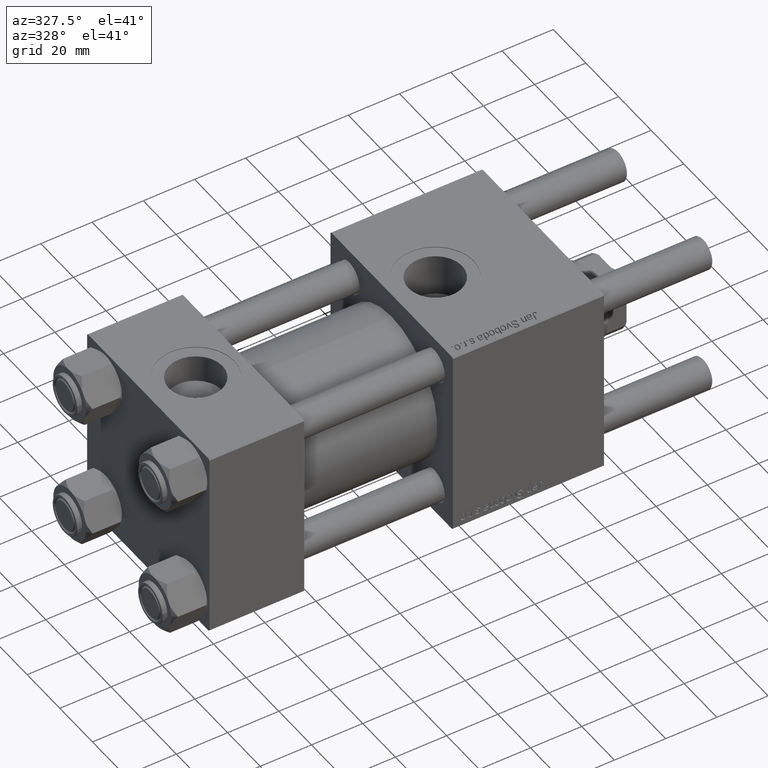
[diagram: clean part render]
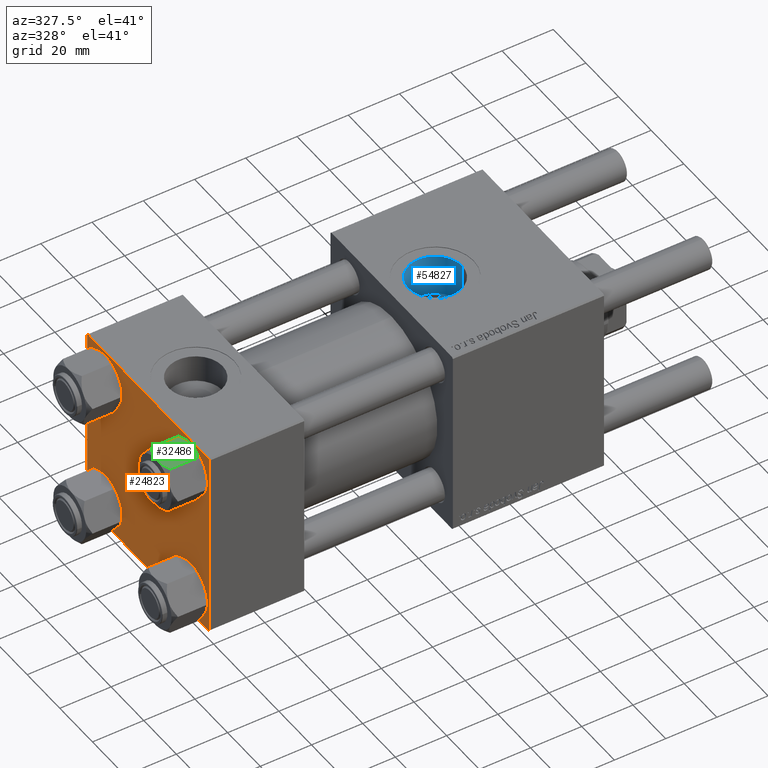
[diagram: same view with three faces highlighted in distinct colors, each labeled with its STEP entity id]
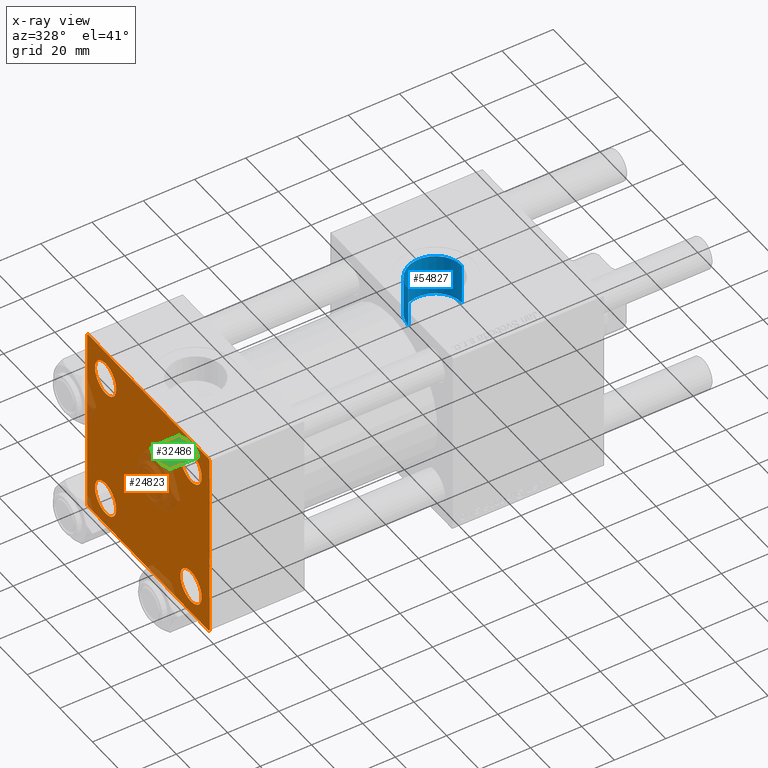
[diagram: x-ray of the same camera — body ghosted, the three highlighted faces saturated]
A machine part, auxiliary view with three faces highlighted in distinct colors.
The next image is the same camera in x-ray (body ghosted, the three faces saturated) — at least one of them is partly hidden behind the body in this view.
Their STEP definitions:

[orange] entity #24823 — the highlighted planar face has unit normal (-1, 0, 0).
#125 = ORIENTED_EDGE ( 'NONE', *, *, #30064, .T. ) ;
#290 = CARTESIAN_POINT ( 'NONE',  ( 0.000000000000000000, 37.49999999999999289, 37.50000000000000000 ) ) ;
#313 = ORIENTED_EDGE ( 'NONE', *, *, #36867, .T. ) ;
#1487 = ORIENTED_EDGE ( 'NONE', *, *, #11150, .T. ) ;
#1965 = CIRCLE ( 'NONE', #16617, 6.500000000000015987 ) ;
#2159 = LINE ( 'NONE', #19913, #5676 ) ;
#2279 = VERTEX_POINT ( 'NONE', #30538 ) ;
#3188 = CARTESIAN_POINT ( 'NONE',  ( 0.000000000000000000, -37.00000000000002132, -37.50000000000000711 ) ) ;
#3226 = CARTESIAN_POINT ( 'NONE',  ( 0.000000000000000000, -26.14999999999999147, 32.65000000000003411 ) ) ;
#3412 = VERTEX_POINT ( 'NONE', #42051 ) ;
#3958 = VECTOR ( 'NONE', #35817, 1000.000000000000000 ) ;
#4011 = VERTEX_POINT ( 'NONE', #9933 ) ;
#4043 = DIRECTION ( 'NONE',  ( -1.000000000000000000, 0.000000000000000000, -0.000000000000000000 ) ) ;
#5489 = CARTESIAN_POINT ( 'NONE',  ( 0.000000000000000000, 26.14999999999999858, 32.65000000000002700 ) ) ;
#5568 = EDGE_CURVE ( 'NONE', #41372, #29368, #49955, .T. ) ;
#5676 = VECTOR ( 'NONE', #19636, 1000.000000000000114 ) ;
#7045 = CARTESIAN_POINT ( 'NONE',  ( 0.000000000000000000, 37.24999999999998579, -37.24999999999998579 ) ) ;
#7262 = CARTESIAN_POINT ( 'NONE',  ( 0.000000000000000000, 26.14999999999999858, -26.15000000000000213 ) ) ;
#8336 = CARTESIAN_POINT ( 'NONE',  ( 0.000000000000000000, 37.49999999999999289, -37.50000000000000000 ) ) ;
#8511 = DIRECTION ( 'NONE',  ( 0.000000000000000000, 0.000000000000000000, 1.000000000000000000 ) ) ;
#9461 = VERTEX_POINT ( 'NONE', #52513 ) ;
#9532 = DIRECTION ( 'NONE',  ( 1.000000000000000000, -0.000000000000000000, 0.000000000000000000 ) ) ;
#9640 = LINE ( 'NONE', #26841, #22949 ) ;
#9933 = CARTESIAN_POINT ( 'NONE',  ( 0.000000000000000000, -37.50000000000000000, -37.00000000000003553 ) ) ;
#10087 = CARTESIAN_POINT ( 'NONE',  ( 0.000000000000000000, -37.00000000000000711, 37.49999999999999289 ) ) ;
#10203 = EDGE_CURVE ( 'NONE', #42466, #17204, #33607, .T. ) ;
#10402 = DIRECTION ( 'NONE',  ( 0.000000000000000000, 0.000000000000000000, 1.000000000000000000 ) ) ;
#11150 = EDGE_CURVE ( 'NONE', #29368, #41372, #24474, .T. ) ;
#11306 = DIRECTION ( 'NONE',  ( 0.000000000000000000, -0.7071067811865524577, 0.7071067811865426878 ) ) ;
#12167 = DIRECTION ( 'NONE',  ( 0.000000000000000000, 9.251858538542971581E-17, -1.000000000000000000 ) ) ;
#12359 = DIRECTION ( 'NONE',  ( -0.000000000000000000, 0.000000000000000000, 1.000000000000000000 ) ) ;
#12442 = CARTESIAN_POINT ( 'NONE',  ( 0.000000000000000000, 26.14999999999999858, -26.15000000000000213 ) ) ;
#12893 = LINE ( 'NONE', #290, #3958 ) ;
#13949 = CARTESIAN_POINT ( 'NONE',  ( 0.000000000000000000, -26.14999999999999147, 26.15000000000000924 ) ) ;
#16060 = DIRECTION ( 'NONE',  ( 1.000000000000000000, -0.000000000000000000, 0.000000000000000000 ) ) ;
#16617 = AXIS2_PLACEMENT_3D ( 'NONE', #47770, #21091, #56088 ) ;
#16689 = CARTESIAN_POINT ( 'NONE',  ( 0.000000000000000000, 26.14999999999999858, 19.64999999999998437 ) ) ;
#16946 = FACE_BOUND ( 'NONE', #48806, .T. ) ;
#17039 = EDGE_CURVE ( 'NONE', #29620, #32361, #29995, .T. ) ;
#17117 = DIRECTION ( 'NONE',  ( 1.000000000000000000, -0.000000000000000000, 0.000000000000000000 ) ) ;
#17204 = VERTEX_POINT ( 'NONE', #16689 ) ;
#17318 = CARTESIAN_POINT ( 'NONE',  ( 0.000000000000000000, -37.50000000000000711, 37.49999999999999289 ) ) ;
#17510 = PLANE ( 'NONE',  #41210 ) ;
#17923 = ORIENTED_EDGE ( 'NONE', *, *, #22160, .F. ) ;
#18543 = CIRCLE ( 'NONE', #24953, 6.500000000000023093 ) ;
#19333 = DIRECTION ( 'NONE',  ( 1.000000000000000000, -0.000000000000000000, 0.000000000000000000 ) ) ;
#19582 = ORIENTED_EDGE ( 'NONE', *, *, #39411, .T. ) ;
#19636 = DIRECTION ( 'NONE',  ( -0.000000000000000000, 0.7071067811865474617, 0.7071067811865474617 ) ) ;
#19669 = ORIENTED_EDGE ( 'NONE', *, *, #31120, .T. ) ;
#19913 = CARTESIAN_POINT ( 'NONE',  ( -0.000000000000000000, -37.25000000000000000, 37.25000000000000000 ) ) ;
#20348 = DIRECTION ( 'NONE',  ( 0.000000000000000000, 0.000000000000000000, 1.000000000000000000 ) ) ;
#20590 = EDGE_CURVE ( 'NONE', #47386, #50327, #34701, .T. ) ;
#20843 = CARTESIAN_POINT ( 'NONE',  ( 0.000000000000000000, -26.14999999999999147, -19.64999999999999503 ) ) ;
#21091 = DIRECTION ( 'NONE',  ( 1.000000000000000000, -0.000000000000000000, 0.000000000000000000 ) ) ;
#22160 = EDGE_CURVE ( 'NONE', #47751, #4011, #56600, .T. ) ;
#22949 = VECTOR ( 'NONE', #27975, 1000.000000000000000 ) ;
#23340 = EDGE_CURVE ( 'NONE', #3412, #47386, #51201, .T. ) ;
#24474 = CIRCLE ( 'NONE', #34540, 6.500000000000023093 ) ;
#24823 = ADVANCED_FACE ( 'NONE', ( #54819, #16946, #39011, #47346, #56511 ), #17510, .T. ) ;
#24866 = VECTOR ( 'NONE', #11306, 1000.000000000000000 ) ;
#24953 = AXIS2_PLACEMENT_3D ( 'NONE', #44805, #9532, #40785 ) ;
#25340 = ORIENTED_EDGE ( 'NONE', *, *, #34327, .T. ) ;
#25487 = VERTEX_POINT ( 'NONE', #27917 ) ;
#25764 = ORIENTED_EDGE ( 'NONE', *, *, #47537, .T. ) ;
#26841 = CARTESIAN_POINT ( 'NONE',  ( 0.000000000000000000, 37.49999999999999289, 37.50000000000000000 ) ) ;
#27225 = AXIS2_PLACEMENT_3D ( 'NONE', #45682, #41656, #10402 ) ;
#27917 = CARTESIAN_POINT ( 'NONE',  ( 0.000000000000000000, -26.14999999999999147, -32.65000000000002700 ) ) ;
#27975 = DIRECTION ( 'NONE',  ( 0.000000000000000000, 0.000000000000000000, -1.000000000000000000 ) ) ;
#28035 = VERTEX_POINT ( 'NONE', #20843 ) ;
#28155 = AXIS2_PLACEMENT_3D ( 'NONE', #12442, #29929, #30207 ) ;
#28746 = DIRECTION ( 'NONE',  ( 0.000000000000000000, 0.000000000000000000, 1.000000000000000000 ) ) ;
#29331 = CIRCLE ( 'NONE', #50415, 6.500000000000015987 ) ;
#29368 = VERTEX_POINT ( 'NONE', #38497 ) ;
#29620 = VERTEX_POINT ( 'NONE', #33133 ) ;
#29807 = CARTESIAN_POINT ( 'NONE',  ( 0.000000000000000000, -26.14999999999999147, -26.15000000000000924 ) ) ;
#29929 = DIRECTION ( 'NONE',  ( 1.000000000000000000, -0.000000000000000000, 0.000000000000000000 ) ) ;
#29995 = CIRCLE ( 'NONE', #28155, 6.500000000000015987 ) ;
#30064 = EDGE_CURVE ( 'NONE', #32361, #29620, #45932, .T. ) ;
#30118 = VECTOR ( 'NONE', #30402, 1000.000000000000000 ) ;
#30151 = VECTOR ( 'NONE', #12167, 1000.000000000000000 ) ;
#30207 = DIRECTION ( 'NONE',  ( 0.000000000000000000, 0.000000000000000000, 1.000000000000000000 ) ) ;
#30402 = DIRECTION ( 'NONE',  ( 0.000000000000000000, -1.000000000000000000, -9.251858538542972814E-17 ) ) ;
#30538 = CARTESIAN_POINT ( 'NONE',  ( 0.000000000000000000, 36.99999999999999289, 37.50000000000000000 ) ) ;
#31120 = EDGE_CURVE ( 'NONE', #9461, #3412, #9640, .T. ) ;
#31252 = ORIENTED_EDGE ( 'NONE', *, *, #20590, .T. ) ;
#31407 = CARTESIAN_POINT ( 'NONE',  ( 0.000000000000000000, 36.99999999999997868, -37.50000000000000000 ) ) ;
#32134 = EDGE_LOOP ( 'NONE', ( #34974, #1487 ) ) ;
#32361 = VERTEX_POINT ( 'NONE', #32432 ) ;
#32432 = CARTESIAN_POINT ( 'NONE',  ( 0.000000000000000000, 26.14999999999999858, -19.64999999999998792 ) ) ;
#33133 = CARTESIAN_POINT ( 'NONE',  ( 0.000000000000000000, 26.14999999999999858, -32.65000000000001990 ) ) ;
#33461 = VERTEX_POINT ( 'NONE', #10087 ) ;
#33604 = CARTESIAN_POINT ( 'NONE',  ( 0.000000000000000000, -37.50000000000000711, 36.99999999999999289 ) ) ;
#33607 = CIRCLE ( 'NONE', #27225, 6.500000000000023093 ) ;
#33895 = EDGE_CURVE ( 'NONE', #2279, #9461, #46141, .T. ) ;
#34327 = EDGE_CURVE ( 'NONE', #28035, #25487, #1965, .T. ) ;
#34454 = EDGE_CURVE ( 'NONE', #50327, #4011, #37684, .T. ) ;
#34508 = ORIENTED_EDGE ( 'NONE', *, *, #33895, .T. ) ;
#34540 = AXIS2_PLACEMENT_3D ( 'NONE', #41941, #50269, #28746 ) ;
#34701 = LINE ( 'NONE', #8336, #30118 ) ;
#34974 = ORIENTED_EDGE ( 'NONE', *, *, #5568, .T. ) ;
#35399 = ORIENTED_EDGE ( 'NONE', *, *, #23340, .T. ) ;
#35684 = VECTOR ( 'NONE', #46056, 1000.000000000000114 ) ;
#35817 = DIRECTION ( 'NONE',  ( 0.000000000000000000, -1.000000000000000000, -9.251858538542971581E-17 ) ) ;
#35852 = VECTOR ( 'NONE', #55866, 1000.000000000000114 ) ;
#36852 = ORIENTED_EDGE ( 'NONE', *, *, #10203, .T. ) ;
#36867 = EDGE_CURVE ( 'NONE', #17204, #42466, #18543, .T. ) ;
#37684 = LINE ( 'NONE', #50027, #24866 ) ;
#38497 = CARTESIAN_POINT ( 'NONE',  ( 0.000000000000000000, -26.14999999999999147, 19.64999999999999147 ) ) ;
#39011 = FACE_BOUND ( 'NONE', #55696, .T. ) ;
#39295 = CARTESIAN_POINT ( 'NONE',  ( 0.000000000000000000, 0.000000000000000000, 0.000000000000000000 ) ) ;
#39411 = EDGE_CURVE ( 'NONE', #25487, #28035, #29331, .T. ) ;
#40785 = DIRECTION ( 'NONE',  ( 0.000000000000000000, 0.000000000000000000, 1.000000000000000000 ) ) ;
#41210 = AXIS2_PLACEMENT_3D ( 'NONE', #39295, #4043, #12359 ) ;
#41372 = VERTEX_POINT ( 'NONE', #3226 ) ;
#41512 = ORIENTED_EDGE ( 'NONE', *, *, #17039, .T. ) ;
#41656 = DIRECTION ( 'NONE',  ( 1.000000000000000000, -0.000000000000000000, 0.000000000000000000 ) ) ;
#41941 = CARTESIAN_POINT ( 'NONE',  ( 0.000000000000000000, -26.14999999999999147, 26.15000000000000924 ) ) ;
#42051 = CARTESIAN_POINT ( 'NONE',  ( 0.000000000000000000, 37.49999999999999289, -36.99999999999998579 ) ) ;
#42466 = VERTEX_POINT ( 'NONE', #5489 ) ;
#44805 = CARTESIAN_POINT ( 'NONE',  ( 0.000000000000000000, 26.14999999999999858, 26.15000000000000213 ) ) ;
#45682 = CARTESIAN_POINT ( 'NONE',  ( 0.000000000000000000, 26.14999999999999858, 26.15000000000000213 ) ) ;
#45932 = CIRCLE ( 'NONE', #54205, 6.500000000000015987 ) ;
#46056 = DIRECTION ( 'NONE',  ( -0.000000000000000000, -0.7071067811865474617, -0.7071067811865474617 ) ) ;
#46141 = LINE ( 'NONE', #50438, #35852 ) ;
#46426 = EDGE_LOOP ( 'NONE', ( #36852, #313 ) ) ;
#47346 = FACE_BOUND ( 'NONE', #46426, .T. ) ;
#47386 = VERTEX_POINT ( 'NONE', #31407 ) ;
#47537 = EDGE_CURVE ( 'NONE', #47751, #33461, #2159, .T. ) ;
#47751 = VERTEX_POINT ( 'NONE', #33604 ) ;
#47770 = CARTESIAN_POINT ( 'NONE',  ( 0.000000000000000000, -26.14999999999999147, -26.15000000000000924 ) ) ;
#48575 = ORIENTED_EDGE ( 'NONE', *, *, #34454, .T. ) ;
#48806 = EDGE_LOOP ( 'NONE', ( #25340, #19582 ) ) ;
#49955 = CIRCLE ( 'NONE', #55439, 6.500000000000023093 ) ;
#50027 = CARTESIAN_POINT ( 'NONE',  ( 0.000000000000000000, -37.24999999999975842, -37.25000000000027001 ) ) ;
#50269 = DIRECTION ( 'NONE',  ( 1.000000000000000000, -0.000000000000000000, 0.000000000000000000 ) ) ;
#50327 = VERTEX_POINT ( 'NONE', #3188 ) ;
#50415 = AXIS2_PLACEMENT_3D ( 'NONE', #29807, #16060, #20348 ) ;
#50438 = CARTESIAN_POINT ( 'NONE',  ( 0.000000000000000000, 37.24999999999999289, 37.24999999999999289 ) ) ;
#51201 = LINE ( 'NONE', #7045, #35684 ) ;
#51410 = ORIENTED_EDGE ( 'NONE', *, *, #51650, .F. ) ;
#51650 = EDGE_CURVE ( 'NONE', #2279, #33461, #12893, .T. ) ;
#51771 = EDGE_LOOP ( 'NONE', ( #19669, #35399, #31252, #48575, #17923, #25764, #51410, #34508 ) ) ;
#52513 = CARTESIAN_POINT ( 'NONE',  ( 0.000000000000000000, 37.49999999999999289, 37.00000000000000000 ) ) ;
#54205 = AXIS2_PLACEMENT_3D ( 'NONE', #7262, #19333, #54327 ) ;
#54327 = DIRECTION ( 'NONE',  ( 0.000000000000000000, 0.000000000000000000, 1.000000000000000000 ) ) ;
#54819 = FACE_BOUND ( 'NONE', #32134, .T. ) ;
#55439 = AXIS2_PLACEMENT_3D ( 'NONE', #13949, #17117, #8511 ) ;
#55696 = EDGE_LOOP ( 'NONE', ( #125, #41512 ) ) ;
#55866 = DIRECTION ( 'NONE',  ( 0.000000000000000000, 0.7071067811865474617, -0.7071067811865474617 ) ) ;
#56088 = DIRECTION ( 'NONE',  ( 0.000000000000000000, 0.000000000000000000, 1.000000000000000000 ) ) ;
#56511 = FACE_OUTER_BOUND ( 'NONE', #51771, .T. ) ;
#56600 = LINE ( 'NONE', #17318, #30151 ) ;

[blue] entity #54827 — the highlighted cylindrical surface (edge-blend (fillet) strip) has radius 10.48 mm, axis along (0, 0, -1).
#2034 = ORIENTED_EDGE ( 'NONE', *, *, #8777, .T. ) ;
#3003 = VERTEX_POINT ( 'NONE', #6853 ) ;
#5454 = AXIS2_PLACEMENT_3D ( 'NONE', #48351, #9052, #30839 ) ;
#6853 = CARTESIAN_POINT ( 'NONE',  ( 101.5199999999999960, -6.938893903907226011E-15, 21.09999999999998010 ) ) ;
#8777 = EDGE_CURVE ( 'NONE', #33039, #3003, #27384, .T. ) ;
#9052 = DIRECTION ( 'NONE',  ( 0.000000000000000000, 0.000000000000000000, 1.000000000000000000 ) ) ;
#11096 = DIRECTION ( 'NONE',  ( 0.000000000000000000, 0.000000000000000000, -1.000000000000000000 ) ) ;
#11239 = CIRCLE ( 'NONE', #14887, 10.48000000000000398 ) ;
#12316 = CARTESIAN_POINT ( 'NONE',  ( 122.4800000000000040, -5.655464058400800522E-15, 21.09999999999998010 ) ) ;
#14617 = CIRCLE ( 'NONE', #5454, 10.48000000000000398 ) ;
#14887 = AXIS2_PLACEMENT_3D ( 'NONE', #30792, #48301, #39697 ) ;
#16921 = EDGE_LOOP ( 'NONE', ( #29967, #36248, #2034, #37204 ) ) ;
#17945 = DIRECTION ( 'NONE',  ( 0.000000000000000000, 0.000000000000000000, -1.000000000000000000 ) ) ;
#18143 = VECTOR ( 'NONE', #11096, 1000.000000000000000 ) ;
#18307 = EDGE_CURVE ( 'NONE', #45214, #30643, #32879, .T. ) ;
#18696 = AXIS2_PLACEMENT_3D ( 'NONE', #30202, #52578, #39674 ) ;
#21878 = FACE_OUTER_BOUND ( 'NONE', #16921, .T. ) ;
#21921 = EDGE_CURVE ( 'NONE', #30643, #3003, #14617, .T. ) ;
#26458 = CYLINDRICAL_SURFACE ( 'NONE', #18696, 10.48000000000000398 ) ;
#27384 = LINE ( 'NONE', #36277, #44595 ) ;
#29967 = ORIENTED_EDGE ( 'NONE', *, *, #18307, .F. ) ;
#30202 = CARTESIAN_POINT ( 'NONE',  ( 112.0000000000000000, -6.938893903907226011E-15, 60.29999999999998295 ) ) ;
#30643 = VERTEX_POINT ( 'NONE', #12316 ) ;
#30792 = CARTESIAN_POINT ( 'NONE',  ( 112.0000000000000000, -6.938893903907226011E-15, 37.29999999999998295 ) ) ;
#30839 = DIRECTION ( 'NONE',  ( 1.000000000000000000, 0.000000000000000000, 0.000000000000000000 ) ) ;
#32879 = LINE ( 'NONE', #50382, #18143 ) ;
#33039 = VERTEX_POINT ( 'NONE', #35830 ) ;
#35830 = CARTESIAN_POINT ( 'NONE',  ( 101.5199999999999960, -6.938893903907226011E-15, 37.29999999999998295 ) ) ;
#36248 = ORIENTED_EDGE ( 'NONE', *, *, #51067, .F. ) ;
#36277 = CARTESIAN_POINT ( 'NONE',  ( 101.5199999999999960, -6.938893903907226011E-15, 60.29999999999998295 ) ) ;
#37204 = ORIENTED_EDGE ( 'NONE', *, *, #21921, .F. ) ;
#39674 = DIRECTION ( 'NONE',  ( -1.000000000000000000, 0.000000000000000000, 0.000000000000000000 ) ) ;
#39697 = DIRECTION ( 'NONE',  ( 1.000000000000000000, 0.000000000000000000, 0.000000000000000000 ) ) ;
#44595 = VECTOR ( 'NONE', #17945, 1000.000000000000000 ) ;
#45214 = VERTEX_POINT ( 'NONE', #46597 ) ;
#46597 = CARTESIAN_POINT ( 'NONE',  ( 122.4800000000000040, -5.655464058400800522E-15, 37.29999999999998295 ) ) ;
#48301 = DIRECTION ( 'NONE',  ( -0.000000000000000000, -0.000000000000000000, -1.000000000000000000 ) ) ;
#48351 = CARTESIAN_POINT ( 'NONE',  ( 112.0000000000000000, -6.938893903907226011E-15, 21.09999999999998010 ) ) ;
#50382 = CARTESIAN_POINT ( 'NONE',  ( 122.4800000000000040, -5.655464058400799734E-15, 60.29999999999998295 ) ) ;
#51067 = EDGE_CURVE ( 'NONE', #33039, #45214, #11239, .T. ) ;
#52578 = DIRECTION ( 'NONE',  ( 0.000000000000000000, 0.000000000000000000, -1.000000000000000000 ) ) ;
#54827 = ADVANCED_FACE ( 'NONE', ( #21878 ), #26458, .F. ) ;

[green] entity #32486 — the highlighted planar face has unit normal (-0, 0.0859, -0.9963).
#9 = FACE_OUTER_BOUND ( 'NONE', #4023, .T. ) ;
#2724 = CARTESIAN_POINT ( 'NONE',  ( 5.810000000000000497, -10.06321519197517667, -1.556784808024813671 ) ) ;
#3459 = DIRECTION ( 'NONE',  ( -1.000000000000000000, -1.492877345935290102E-16, 0.000000000000000000 ) ) ;
#3650 = CARTESIAN_POINT ( 'NONE',  ( 3.474497094393254049, -10.06321519197517667, -13.42730390989572697 ) ) ;
#4023 = EDGE_LOOP ( 'NONE', ( #43075, #20011, #56282, #5988, #12268, #51332 ) ) ;
#4249 = CARTESIAN_POINT ( 'NONE',  ( -3.474497094393253604, -10.06321519197517844, -0.5726960901042740248 ) ) ;
#5231 = EDGE_CURVE ( 'NONE', #41279, #55736, #32572, .T. ) ;
#5456 = EDGE_CURVE ( 'NONE', #23538, #39039, #36637, .T. ) ;
#5988 = ORIENTED_EDGE ( 'NONE', *, *, #43093, .F. ) ;
#6866 = CARTESIAN_POINT ( 'NONE',  ( -5.810000000000000497, -10.06321519197517844, -14.00000000000000000 ) ) ;
#7096 = CARTESIAN_POINT ( 'NONE',  ( 4.900668367960796523, -10.06321519197517489, -12.87844331629023209 ) ) ;
#7374 = CARTESIAN_POINT ( 'NONE',  ( -3.960942496020602555, -10.06321519197517667, -13.28842716763895737 ) ) ;
#7377 = CARTESIAN_POINT ( 'NONE',  ( 1.020132157807625672, -10.06321519197517489, -14.00000000000000178 ) ) ;
#8260 = CARTESIAN_POINT ( 'NONE',  ( -3.958929922320422179, -10.06321519197517667, -0.7421398502353990789 ) ) ;
#10194 = CARTESIAN_POINT ( 'NONE',  ( 1.502314598737159820E-15, -10.06321519197518022, -14.00000000000000000 ) ) ;
#11396 = CARTESIAN_POINT ( 'NONE',  ( 1.502314598737159820E-15, -10.06321519197518022, -14.00000000000000000 ) ) ;
#11746 = CARTESIAN_POINT ( 'NONE',  ( 0.2543996698847487137, -10.06321519197517844, 2.651777813537460036E-15 ) ) ;
#12051 = DIRECTION ( 'NONE',  ( -1.492877345935290102E-16, 1.000000000000000000, 0.000000000000000000 ) ) ;
#12106 = VERTEX_POINT ( 'NONE', #23890 ) ;
#12268 = ORIENTED_EDGE ( 'NONE', *, *, #40162, .F. ) ;
#13422 = CARTESIAN_POINT ( 'NONE',  ( -5.810000000000000497, -10.06321519197517844, -12.44321519197518455 ) ) ;
#13694 = VECTOR ( 'NONE', #54767, 1000.000000000000000 ) ;
#14844 = CARTESIAN_POINT ( 'NONE',  ( 5.810000000000000497, -10.06321519197517667, -14.00000000000000000 ) ) ;
#16336 = CARTESIAN_POINT ( 'NONE',  ( 3.960942496020602555, -10.06321519197517667, -0.7115728323610392980 ) ) ;
#17154 = CARTESIAN_POINT ( 'NONE',  ( -1.020132157807625450, -10.06321519197517667, 2.398797306624178560E-15 ) ) ;
#17189 = CARTESIAN_POINT ( 'NONE',  ( 2.508586450168040383, -10.06321519197517667, -0.2975752632032270806 ) ) ;
#19710 = CARTESIAN_POINT ( 'NONE',  ( -2.508586450168039494, -10.06321519197517844, -13.70242473679676998 ) ) ;
#20011 = ORIENTED_EDGE ( 'NONE', *, *, #54350, .T. ) ;
#20275 = CARTESIAN_POINT ( 'NONE',  ( 5.810000000000000497, -10.06321519197517667, -12.44321519197518633 ) ) ;
#20630 = CARTESIAN_POINT ( 'NONE',  ( 1.018274738099085086, -10.06321519197517311, -0.04822742080070722276 ) ) ;
#23538 = VERTEX_POINT ( 'NONE', #40278 ) ;
#23709 = DIRECTION ( 'NONE',  ( -0.000000000000000000, -0.000000000000000000, 1.000000000000000000 ) ) ;
#23890 = CARTESIAN_POINT ( 'NONE',  ( -5.810000000000000497, -10.06321519197517844, -1.556784808024815225 ) ) ;
#24199 = B_SPLINE_CURVE_WITH_KNOTS ( 'NONE', 3,
 ( #11396, #46669, #50122, #55264, #46956, #19710, #7374, #46103, #51248 ),
 .UNSPECIFIED., .F., .F.,
 ( 4, 2, 1, 2, 4 ),
 ( 0.02074012592819902620, 0.02149589804477579011, 0.02225167016135255749, 0.02376321439450608530, 0.02678630286081314441 ),
 .UNSPECIFIED. ) ;
#25144 = CARTESIAN_POINT ( 'NONE',  ( 1.502314598737159820E-15, -10.06321519197518022, -14.00000000000000000 ) ) ;
#30325 = CARTESIAN_POINT ( 'NONE',  ( -5.359707691559672860, -10.06321519197517667, -1.331638653804653405 ) ) ;
#30380 = PLANE ( 'NONE',  #32157 ) ;
#30610 = CARTESIAN_POINT ( 'NONE',  ( 1.502314598737159820E-15, -10.06321519197518022, 0.000000000000000000 ) ) ;
#31491 = VECTOR ( 'NONE', #23709, 1000.000000000000000 ) ;
#32157 = AXIS2_PLACEMENT_3D ( 'NONE', #42461, #12051, #3459 ) ;
#32197 = CARTESIAN_POINT ( 'NONE',  ( 1.502314598737159820E-15, -10.06321519197518022, 0.000000000000000000 ) ) ;
#32486 = ADVANCED_FACE ( 'NONE', ( #9 ), #30380, .F. ) ;
#32572 = B_SPLINE_CURVE_WITH_KNOTS ( 'NONE', 3,
 ( #47308, #11746, #56468, #20630, #42437, #17189, #16336, #34660, #52169 ),
 .UNSPECIFIED., .F., .F.,
 ( 4, 2, 1, 2, 4 ),
 ( 0.02074012592819902620, 0.02149589804477579011, 0.02225167016135255402, 0.02376321439450608530, 0.02678630286081314441 ),
 .UNSPECIFIED. ) ;
#34628 = CARTESIAN_POINT ( 'NONE',  ( -4.900668367960797411, -10.06321519197517844, -1.121556683709773683 ) ) ;
#34660 = CARTESIAN_POINT ( 'NONE',  ( 4.908816193182379273, -10.06321519197517844, -1.106192904616004835 ) ) ;
#36339 = B_SPLINE_CURVE_WITH_KNOTS ( 'NONE', 3,
 ( #39796, #30325, #34628, #8260, #4249, #39512, #17154, #30610 ),
 .UNSPECIFIED., .F., .F.,
 ( 4, 2, 2, 4 ),
 ( 0.01467889604968879505, 0.01619420351931635110, 0.01770951098894391063, 0.02074012592819902620 ),
 .UNSPECIFIED. ) ;
#36637 = B_SPLINE_CURVE_WITH_KNOTS ( 'NONE', 3,
 ( #20275, #46392, #7096, #38065, #3650, #46673, #7377, #25144 ),
 .UNSPECIFIED., .F., .F.,
 ( 4, 2, 2, 4 ),
 ( 0.01467889604968879332, 0.01619420351931635110, 0.01770951098894391063, 0.02074012592819902620 ),
 .UNSPECIFIED. ) ;
#38065 = CARTESIAN_POINT ( 'NONE',  ( 3.958929922320422179, -10.06321519197517489, -13.25786014976459803 ) ) ;
#38920 = EDGE_CURVE ( 'NONE', #39039, #43077, #24199, .T. ) ;
#39039 = VERTEX_POINT ( 'NONE', #10194 ) ;
#39512 = CARTESIAN_POINT ( 'NONE',  ( -2.013954290287966575, -10.06321519197517844, -0.1570111679759964574 ) ) ;
#39796 = CARTESIAN_POINT ( 'NONE',  ( -5.810000000000000497, -10.06321519197517844, -1.556784808024815225 ) ) ;
#40162 = EDGE_CURVE ( 'NONE', #43077, #12106, #46444, .T. ) ;
#40278 = CARTESIAN_POINT ( 'NONE',  ( 5.810000000000000497, -10.06321519197517667, -12.44321519197518633 ) ) ;
#41279 = VERTEX_POINT ( 'NONE', #32197 ) ;
#42437 = CARTESIAN_POINT ( 'NONE',  ( 1.772424303831127812, -10.06321519197517844, -0.1338870921722363216 ) ) ;
#42461 = CARTESIAN_POINT ( 'NONE',  ( 5.810000000000000497, -10.06321519197517667, -14.00000000000000000 ) ) ;
#43075 = ORIENTED_EDGE ( 'NONE', *, *, #5456, .F. ) ;
#43077 = VERTEX_POINT ( 'NONE', #13422 ) ;
#43093 = EDGE_CURVE ( 'NONE', #12106, #41279, #36339, .T. ) ;
#46103 = CARTESIAN_POINT ( 'NONE',  ( -4.908816193182379273, -10.06321519197517667, -12.89380709538398939 ) ) ;
#46392 = CARTESIAN_POINT ( 'NONE',  ( 5.359707691559676412, -10.06321519197517844, -12.66836134619534882 ) ) ;
#46444 = LINE ( 'NONE', #6866, #13694 ) ;
#46669 = CARTESIAN_POINT ( 'NONE',  ( -0.2543996698847483806, -10.06321519197517667, -14.00000000000000355 ) ) ;
#46673 = CARTESIAN_POINT ( 'NONE',  ( 2.013954290287967019, -10.06321519197517489, -13.84298883202400532 ) ) ;
#46956 = CARTESIAN_POINT ( 'NONE',  ( -1.772424303831128478, -10.06321519197517489, -13.86611290782776251 ) ) ;
#47308 = CARTESIAN_POINT ( 'NONE',  ( 1.502314598737159820E-15, -10.06321519197518022, 0.000000000000000000 ) ) ;
#50122 = CARTESIAN_POINT ( 'NONE',  ( -0.5112014849988886223, -10.06321519197517489, -13.99019602057109068 ) ) ;
#51248 = CARTESIAN_POINT ( 'NONE',  ( -5.810000000000000497, -10.06321519197517844, -12.44321519197518455 ) ) ;
#51332 = ORIENTED_EDGE ( 'NONE', *, *, #38920, .F. ) ;
#52169 = CARTESIAN_POINT ( 'NONE',  ( 5.810000000000000497, -10.06321519197517667, -1.556784808024813671 ) ) ;
#53849 = LINE ( 'NONE', #14844, #31491 ) ;
#54350 = EDGE_CURVE ( 'NONE', #23538, #55736, #53849, .T. ) ;
#54767 = DIRECTION ( 'NONE',  ( -0.000000000000000000, -0.000000000000000000, 1.000000000000000000 ) ) ;
#55264 = CARTESIAN_POINT ( 'NONE',  ( -1.018274738099085086, -10.06321519197517667, -13.95177257919929126 ) ) ;
#55736 = VERTEX_POINT ( 'NONE', #2724 ) ;
#56282 = ORIENTED_EDGE ( 'NONE', *, *, #5231, .F. ) ;
#56468 = CARTESIAN_POINT ( 'NONE',  ( 0.5112014849988887333, -10.06321519197517667, -0.009803979428911684807 ) ) ;